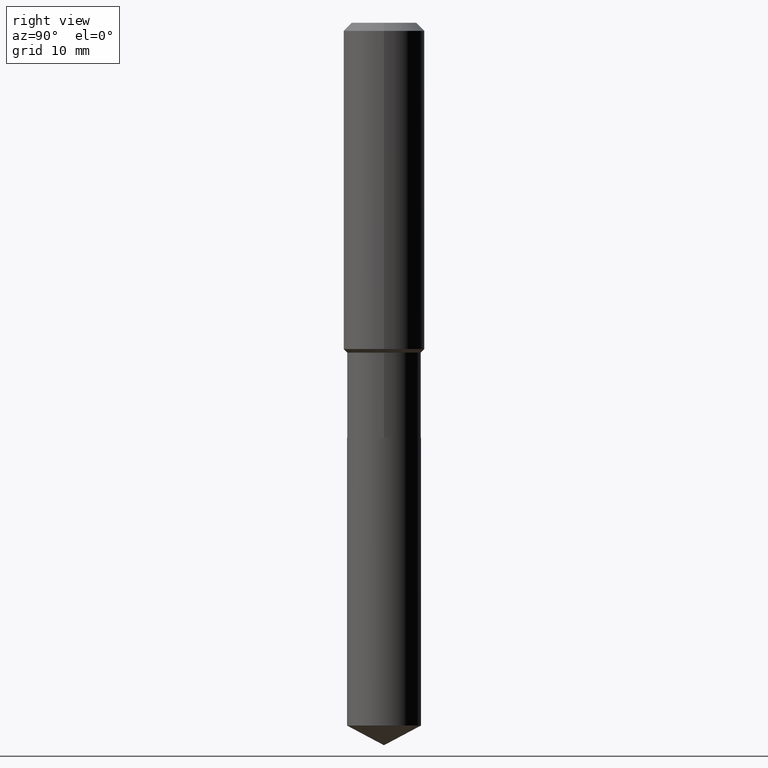
[diagram: clean part render]
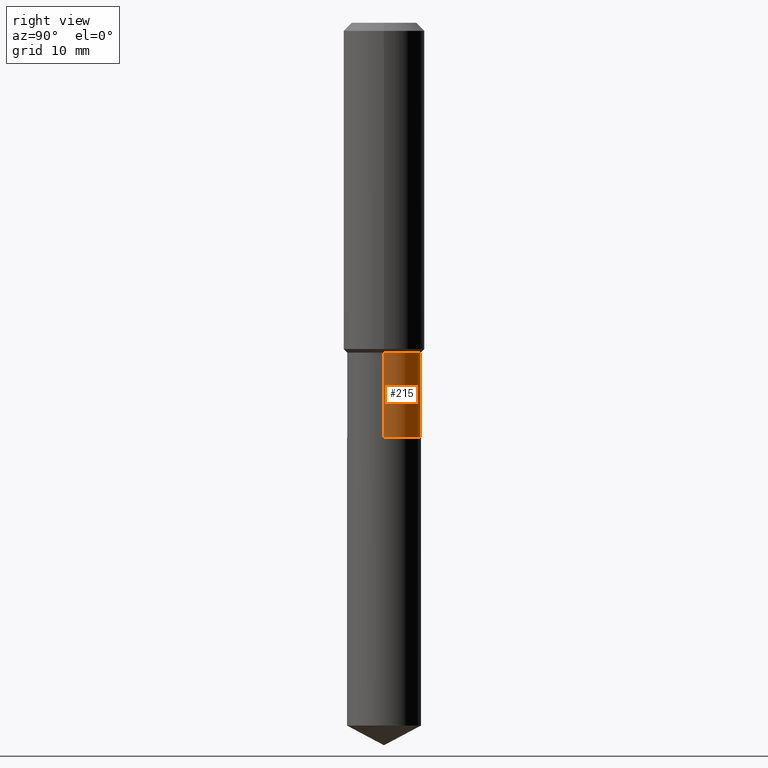
[diagram: same view with one face highlighted and labeled with its STEP entity id]
A machine part, right view. The second image highlights one B-rep face of the part: STEP entity #215.
In plain terms, the highlighted cylindrical surface (partial cylindrical patch) has radius 4.5644 mm, axis along (-0, 0, 1).
Its self-contained STEP definition (entity closure, byte-faithful):
#12 = CARTESIAN_POINT ( 'NONE',  ( 0.1796999999999999986, -8.281095439468167762E-15, -2.012399999999999967 ) ) ;
#13 = CARTESIAN_POINT ( 'NONE',  ( 0.000000000000000000, 0.000000000000000000, 0.000000000000000000 ) ) ;
#24 = AXIS2_PLACEMENT_3D ( 'NONE', #308, #348, #195 ) ;
#52 = CYLINDRICAL_SURFACE ( 'NONE', #230, 0.1796999999999999986 ) ;
#65 = CARTESIAN_POINT ( 'NONE',  ( -0.1796999999999999709, -5.028770001789819555E-15, -1.599599999999999467 ) ) ;
#77 = CARTESIAN_POINT ( 'NONE',  ( 0.1796999999999999709, -6.839811942793715251E-15, -1.599599999999999467 ) ) ;
#78 = VERTEX_POINT ( 'NONE', #77 ) ;
#84 = DIRECTION ( 'NONE',  ( 1.000000000000000000, -6.982962677686267499E-15, 0.000000000000000000 ) ) ;
#90 = ORIENTED_EDGE ( 'NONE', *, *, #354, .F. ) ;
#100 = EDGE_CURVE ( 'NONE', #209, #306, #464, .T. ) ;
#171 = DIRECTION ( 'NONE',  ( -2.445468806185136597E-29, 3.491481338843145583E-15, 1.000000000000000000 ) ) ;
#187 = LINE ( 'NONE', #338, #470 ) ;
#191 = ORIENTED_EDGE ( 'NONE', *, *, #386, .F. ) ;
#195 = DIRECTION ( 'NONE',  ( 1.000000000000000000, -6.982962677686263555E-15, 0.000000000000000000 ) ) ;
#199 = DIRECTION ( 'NONE',  ( -2.445468806185136877E-29, 3.491481338843145188E-15, 1.000000000000000000 ) ) ;
#200 = ORIENTED_EDGE ( 'NONE', *, *, #100, .T. ) ;
#204 = DIRECTION ( 'NONE',  ( 1.000000000000000000, -6.982962677686265922E-15, 4.876176775795935232E-29 ) ) ;
#209 = VERTEX_POINT ( 'NONE', #247 ) ;
#211 = CARTESIAN_POINT ( 'NONE',  ( 4.921261425566968280E-29, -7.026257046287946031E-15, -2.012399999999999967 ) ) ;
#215 = ADVANCED_FACE ( 'NONE', ( #325 ), #52, .T. ) ;
#221 = DIRECTION ( 'NONE',  ( -2.445468806185136877E-29, 3.491481338843145188E-15, 1.000000000000000000 ) ) ;
#230 = AXIS2_PLACEMENT_3D ( 'NONE', #13, #171, #204 ) ;
#247 = CARTESIAN_POINT ( 'NONE',  ( -0.1796999999999999986, -5.028770001789819555E-15, -2.012399999999999967 ) ) ;
#264 = VERTEX_POINT ( 'NONE', #12 ) ;
#267 = CIRCLE ( 'NONE', #24, 0.1796999999999999709 ) ;
#275 = AXIS2_PLACEMENT_3D ( 'NONE', #211, #435, #84 ) ;
#276 = CARTESIAN_POINT ( 'NONE',  ( -0.1796999999999999986, 1.276845296160900024E-15, -8.839326357188065585E-30 ) ) ;
#306 = VERTEX_POINT ( 'NONE', #65 ) ;
#308 = CARTESIAN_POINT ( 'NONE',  ( 3.911771902373742968E-29, -5.584973549613493521E-15, -1.599599999999999467 ) ) ;
#325 = FACE_OUTER_BOUND ( 'NONE', #413, .T. ) ;
#338 = CARTESIAN_POINT ( 'NONE',  ( 0.1796999999999999986, -1.254838393180221928E-15, 8.762489666105295644E-30 ) ) ;
#348 = DIRECTION ( 'NONE',  ( -2.445468806185136597E-29, 3.491481338843145583E-15, 1.000000000000000000 ) ) ;
#354 = EDGE_CURVE ( 'NONE', #264, #78, #187, .T. ) ;
#386 = EDGE_CURVE ( 'NONE', #78, #306, #267, .T. ) ;
#413 = EDGE_LOOP ( 'NONE', ( #429, #200, #191, #90 ) ) ;
#429 = ORIENTED_EDGE ( 'NONE', *, *, #475, .T. ) ;
#435 = DIRECTION ( 'NONE',  ( -2.445468806185136597E-29, 3.491481338843145583E-15, 1.000000000000000000 ) ) ;
#464 = LINE ( 'NONE', #276, #473 ) ;
#470 = VECTOR ( 'NONE', #221, 39.37007874015748143 ) ;
#473 = VECTOR ( 'NONE', #199, 39.37007874015748143 ) ;
#475 = EDGE_CURVE ( 'NONE', #264, #209, #479, .T. ) ;
#479 = CIRCLE ( 'NONE', #275, 0.1796999999999999986 ) ;